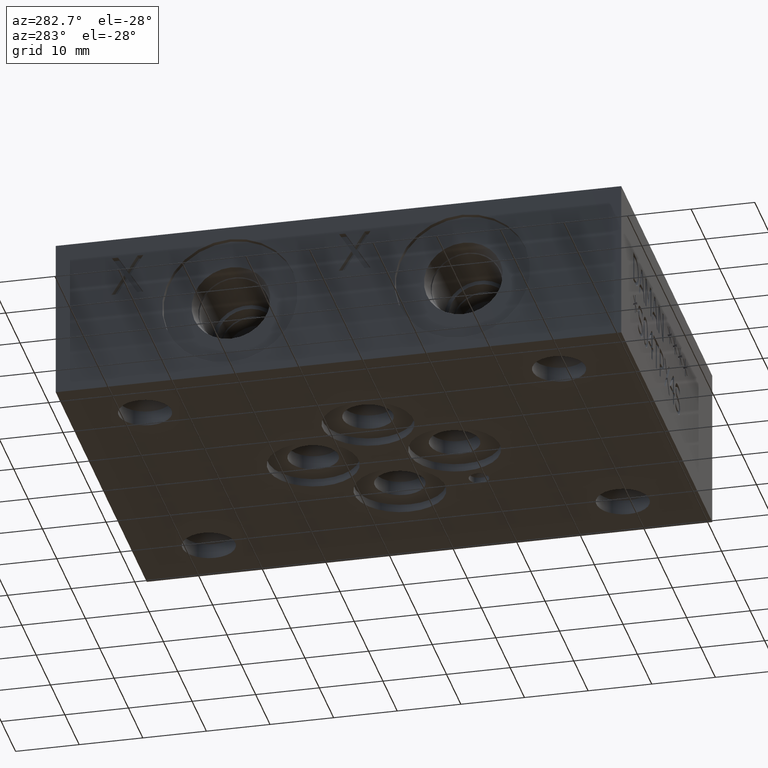
[diagram: clean part render]
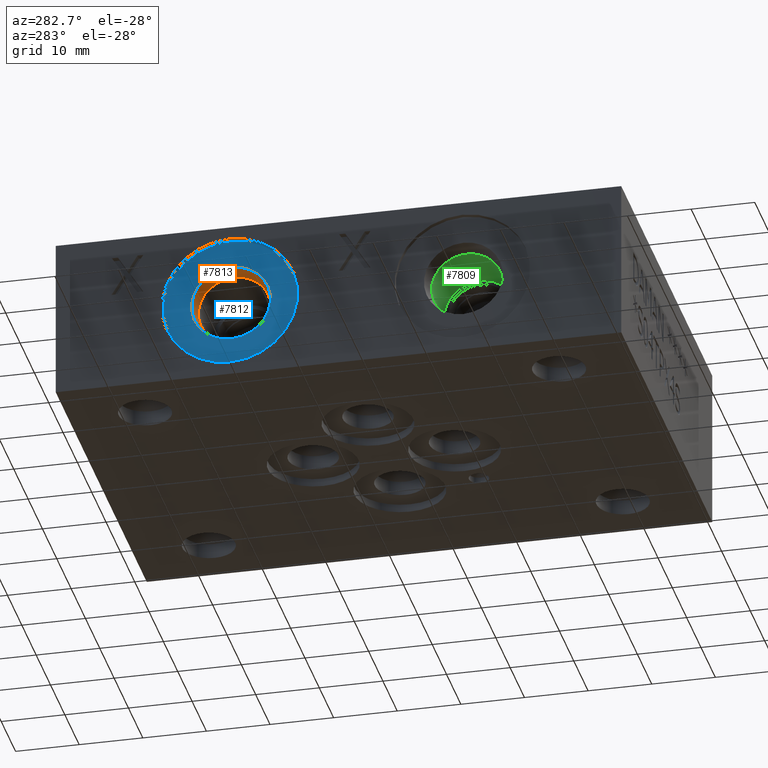
[diagram: same view with three faces highlighted in distinct colors, each labeled with its STEP entity id]
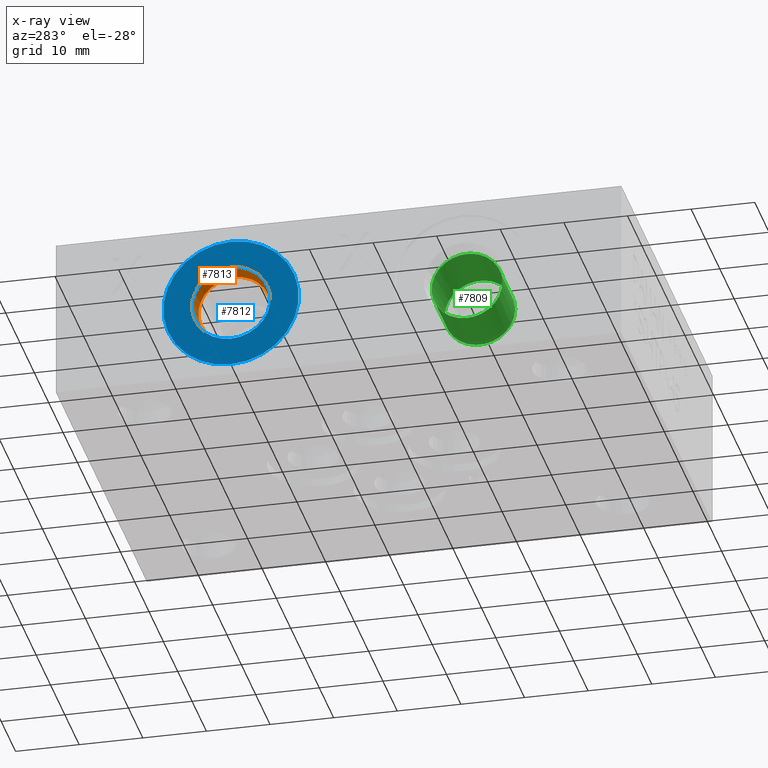
[diagram: x-ray of the same camera — body ghosted, the three highlighted faces saturated]
A machine part, auxiliary view with three faces highlighted in distinct colors.
The next image is the same camera in x-ray (body ghosted, the three faces saturated) — at least one of them is partly hidden behind the body in this view.
Their STEP definitions:

[orange] entity #7813 — the highlighted conical surface has half-angle 12 deg.
#170=CIRCLE('',#8281,6.1976);
#171=CIRCLE('',#8282,6.1976);
#172=CIRCLE('',#8284,5.6896);
#173=CIRCLE('',#8285,5.6896);
#200=CONICAL_SURFACE('',#8283,5.9436,0.209439509866191);
#821=FACE_OUTER_BOUND('',#1244,.T.);
#1244=EDGE_LOOP('',(#6748,#6749,#6750,#6751,#6752,#6753));
#2085=LINE('',#12980,#2904);
#2904=VECTOR('',#10002,5.9436);
#3642=VERTEX_POINT('',#12974);
#3643=VERTEX_POINT('',#12975);
#3644=VERTEX_POINT('',#12979);
#3645=VERTEX_POINT('',#12981);
#4703=EDGE_CURVE('',#3642,#3643,#170,.T.);
#4704=EDGE_CURVE('',#3643,#3642,#171,.T.);
#4705=EDGE_CURVE('',#3643,#3644,#2085,.T.);
#4706=EDGE_CURVE('',#3644,#3645,#172,.T.);
#4707=EDGE_CURVE('',#3645,#3644,#173,.T.);
#6748=ORIENTED_EDGE('',*,*,#4703,.F.);
#6749=ORIENTED_EDGE('',*,*,#4704,.F.);
#6750=ORIENTED_EDGE('',*,*,#4705,.T.);
#6751=ORIENTED_EDGE('',*,*,#4706,.T.);
#6752=ORIENTED_EDGE('',*,*,#4707,.T.);
#6753=ORIENTED_EDGE('',*,*,#4705,.F.);
#7813=ADVANCED_FACE('',(#821),#200,.F.);
#8281=AXIS2_PLACEMENT_3D('',#12976,#9996,#9997);
#8282=AXIS2_PLACEMENT_3D('',#12977,#9998,#9999);
#8283=AXIS2_PLACEMENT_3D('',#12978,#10000,#10001);
#8284=AXIS2_PLACEMENT_3D('',#12982,#10003,#10004);
#8285=AXIS2_PLACEMENT_3D('',#12983,#10005,#10006);
#9996=DIRECTION('center_axis',(1.,0.,0.));
#9997=DIRECTION('ref_axis',(0.,0.,-1.));
#9998=DIRECTION('center_axis',(1.,0.,0.));
#9999=DIRECTION('ref_axis',(0.,0.,-1.));
#10000=DIRECTION('center_axis',(-1.,0.,0.));
#10001=DIRECTION('ref_axis',(0.,0.,1.));
#10002=DIRECTION('',(0.978147600811383,-2.54618386218318E-17,0.207911690452785));
#10003=DIRECTION('center_axis',(1.,0.,0.));
#10004=DIRECTION('ref_axis',(0.,0.,-1.));
#10005=DIRECTION('center_axis',(1.,0.,0.));
#10006=DIRECTION('ref_axis',(0.,0.,-1.));
#12974=CARTESIAN_POINT('',(0.7874,61.5188,18.8976));
#12975=CARTESIAN_POINT('',(0.787399999999999,61.5188,6.5024));
#12976=CARTESIAN_POINT('Origin',(0.7874,61.5188,12.7));
#12977=CARTESIAN_POINT('Origin',(0.7874,61.5188,12.7));
#12978=CARTESIAN_POINT('Origin',(1.98237605,61.5188,12.7));
#12979=CARTESIAN_POINT('',(3.1773521,61.5188,7.0104));
#12980=CARTESIAN_POINT('',(1.98237605,61.5188,6.7564));
#12981=CARTESIAN_POINT('',(3.1773521,61.5188,18.3896));
#12982=CARTESIAN_POINT('Origin',(3.1773521,61.5188,12.7));
#12983=CARTESIAN_POINT('Origin',(3.1773521,61.5188,12.7));

[blue] entity #7812 — the highlighted planar face has unit normal (1, 0, 0).
#168=CIRCLE('',#8278,10.6426);
#169=CIRCLE('',#8279,10.6426);
#170=CIRCLE('',#8281,6.1976);
#171=CIRCLE('',#8282,6.1976);
#234=FACE_BOUND('',#1243,.T.);
#820=FACE_OUTER_BOUND('',#1242,.T.);
#1242=EDGE_LOOP('',(#6744,#6745));
#1243=EDGE_LOOP('',(#6746,#6747));
#3640=VERTEX_POINT('',#12968);
#3641=VERTEX_POINT('',#12970);
#3642=VERTEX_POINT('',#12974);
#3643=VERTEX_POINT('',#12975);
#4701=EDGE_CURVE('',#3640,#3641,#168,.T.);
#4702=EDGE_CURVE('',#3641,#3640,#169,.T.);
#4703=EDGE_CURVE('',#3642,#3643,#170,.T.);
#4704=EDGE_CURVE('',#3643,#3642,#171,.T.);
#6744=ORIENTED_EDGE('',*,*,#4702,.F.);
#6745=ORIENTED_EDGE('',*,*,#4701,.F.);
#6746=ORIENTED_EDGE('',*,*,#4703,.T.);
#6747=ORIENTED_EDGE('',*,*,#4704,.T.);
#7114=PLANE('',#8280);
#7812=ADVANCED_FACE('',(#820,#234),#7114,.F.);
#8278=AXIS2_PLACEMENT_3D('',#12971,#9990,#9991);
#8279=AXIS2_PLACEMENT_3D('',#12972,#9992,#9993);
#8280=AXIS2_PLACEMENT_3D('',#12973,#9994,#9995);
#8281=AXIS2_PLACEMENT_3D('',#12976,#9996,#9997);
#8282=AXIS2_PLACEMENT_3D('',#12977,#9998,#9999);
#9990=DIRECTION('center_axis',(1.,0.,0.));
#9991=DIRECTION('ref_axis',(0.,0.,-1.));
#9992=DIRECTION('center_axis',(1.,0.,0.));
#9993=DIRECTION('ref_axis',(0.,0.,-1.));
#9994=DIRECTION('center_axis',(1.,0.,0.));
#9995=DIRECTION('ref_axis',(0.,0.,-1.));
#9996=DIRECTION('center_axis',(1.,0.,0.));
#9997=DIRECTION('ref_axis',(0.,0.,-1.));
#9998=DIRECTION('center_axis',(1.,0.,0.));
#9999=DIRECTION('ref_axis',(0.,0.,-1.));
#12968=CARTESIAN_POINT('',(0.7874,61.5188,2.0574));
#12970=CARTESIAN_POINT('',(0.7874,61.5188,23.3426));
#12971=CARTESIAN_POINT('Origin',(0.7874,61.5188,12.7));
#12972=CARTESIAN_POINT('Origin',(0.7874,61.5188,12.7));
#12973=CARTESIAN_POINT('Origin',(0.7874,61.5188,18.8976));
#12974=CARTESIAN_POINT('',(0.7874,61.5188,18.8976));
#12975=CARTESIAN_POINT('',(0.787399999999999,61.5188,6.5024));
#12976=CARTESIAN_POINT('Origin',(0.7874,61.5188,12.7));
#12977=CARTESIAN_POINT('Origin',(0.7874,61.5188,12.7));

[green] entity #7809 — the highlighted cylindrical surface (bore or boss wall) has radius 5.5626 mm, axis along (-1, 0, 0).
#43=CYLINDRICAL_SURFACE('',#8273,5.5626);
#146=CIRCLE('',#8243,5.5626);
#147=CIRCLE('',#8244,5.5626);
#163=CIRCLE('',#8270,5.5626);
#164=CIRCLE('',#8271,5.5626);
#817=FACE_OUTER_BOUND('',#1239,.T.);
#1239=EDGE_LOOP('',(#6727,#6728,#6729,#6730,#6731,#6732));
#2082=LINE('',#12960,#2901);
#2901=VECTOR('',#9979,5.5626);
#3616=VERTEX_POINT('',#12898);
#3617=VERTEX_POINT('',#12900);
#3635=VERTEX_POINT('',#12953);
#3636=VERTEX_POINT('',#12954);
#4668=EDGE_CURVE('',#3617,#3616,#146,.T.);
#4669=EDGE_CURVE('',#3616,#3617,#147,.T.);
#4693=EDGE_CURVE('',#3635,#3636,#163,.T.);
#4694=EDGE_CURVE('',#3636,#3635,#164,.T.);
#4696=EDGE_CURVE('',#3617,#3636,#2082,.T.);
#6727=ORIENTED_EDGE('',*,*,#4668,.T.);
#6728=ORIENTED_EDGE('',*,*,#4669,.T.);
#6729=ORIENTED_EDGE('',*,*,#4696,.T.);
#6730=ORIENTED_EDGE('',*,*,#4693,.F.);
#6731=ORIENTED_EDGE('',*,*,#4694,.F.);
#6732=ORIENTED_EDGE('',*,*,#4696,.F.);
#7809=ADVANCED_FACE('',(#817),#43,.F.);
#8243=AXIS2_PLACEMENT_3D('',#12901,#9909,#9910);
#8244=AXIS2_PLACEMENT_3D('',#12902,#9911,#9912);
#8270=AXIS2_PLACEMENT_3D('',#12955,#9971,#9972);
#8271=AXIS2_PLACEMENT_3D('',#12956,#9973,#9974);
#8273=AXIS2_PLACEMENT_3D('',#12959,#9977,#9978);
#9909=DIRECTION('center_axis',(-1.,0.,0.));
#9910=DIRECTION('ref_axis',(0.,1.,0.));
#9911=DIRECTION('center_axis',(-1.,0.,0.));
#9912=DIRECTION('ref_axis',(0.,1.,0.));
#9971=DIRECTION('center_axis',(-1.,0.,0.));
#9972=DIRECTION('ref_axis',(0.,1.,0.));
#9973=DIRECTION('center_axis',(-1.,0.,0.));
#9974=DIRECTION('ref_axis',(0.,1.,0.));
#9977=DIRECTION('center_axis',(-1.,0.,0.));
#9978=DIRECTION('ref_axis',(0.,1.,0.));
#9979=DIRECTION('',(1.,0.,0.));
#12898=CARTESIAN_POINT('',(3.30429959776786,24.9936,7.1374));
#12900=CARTESIAN_POINT('',(3.30429959776786,19.431,12.7));
#12901=CARTESIAN_POINT('Origin',(3.30429959776786,24.9936,12.7));
#12902=CARTESIAN_POINT('Origin',(3.30429959776786,24.9936,12.7));
#12953=CARTESIAN_POINT('',(12.2936,30.5562,12.7));
#12954=CARTESIAN_POINT('',(12.2936,19.431,12.7));
#12955=CARTESIAN_POINT('Origin',(12.2936,24.9936,12.7));
#12956=CARTESIAN_POINT('Origin',(12.2936,24.9936,12.7));
#12959=CARTESIAN_POINT('Origin',(6.1468,24.9936,12.7));
#12960=CARTESIAN_POINT('',(6.1468,19.431,12.7));